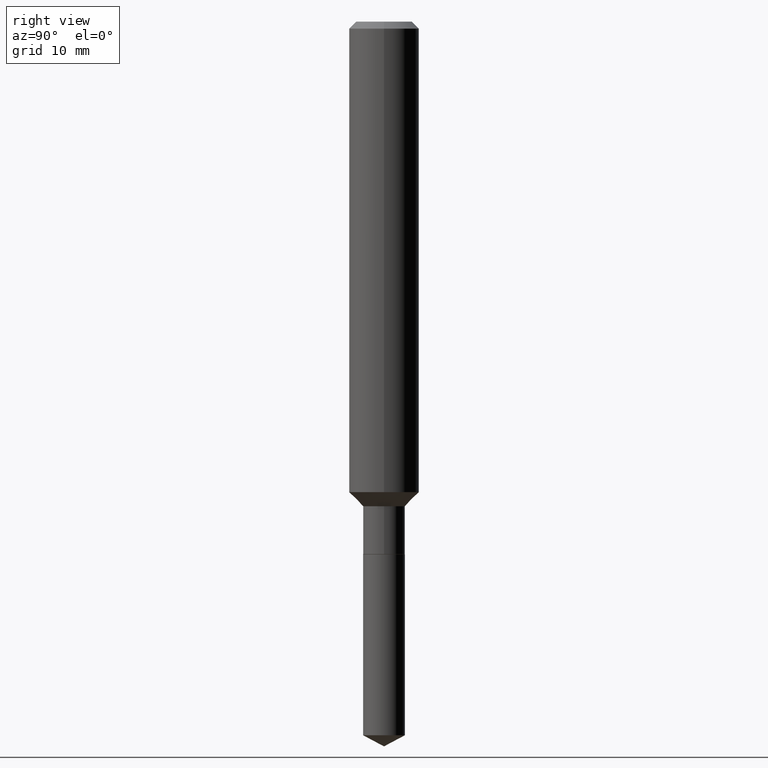
[diagram: clean part render]
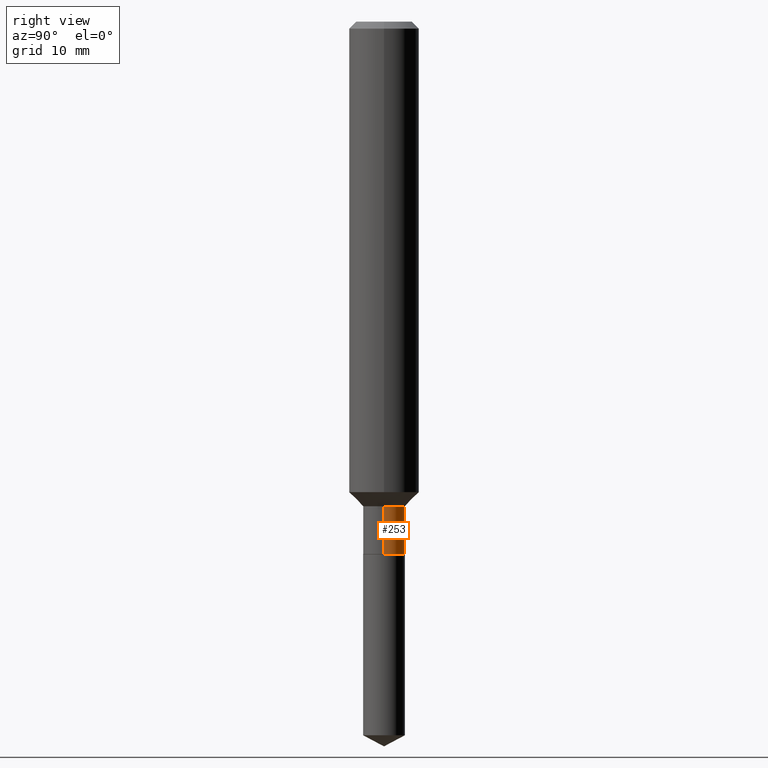
[diagram: same view with one face highlighted and labeled with its STEP entity id]
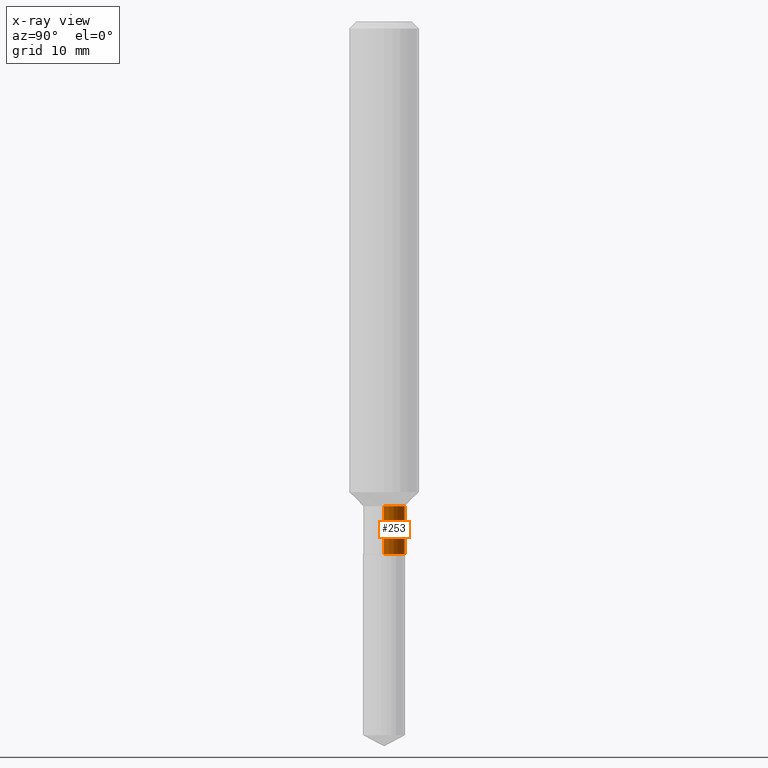
[diagram: x-ray of the same camera — body ghosted, the highlighted face saturated]
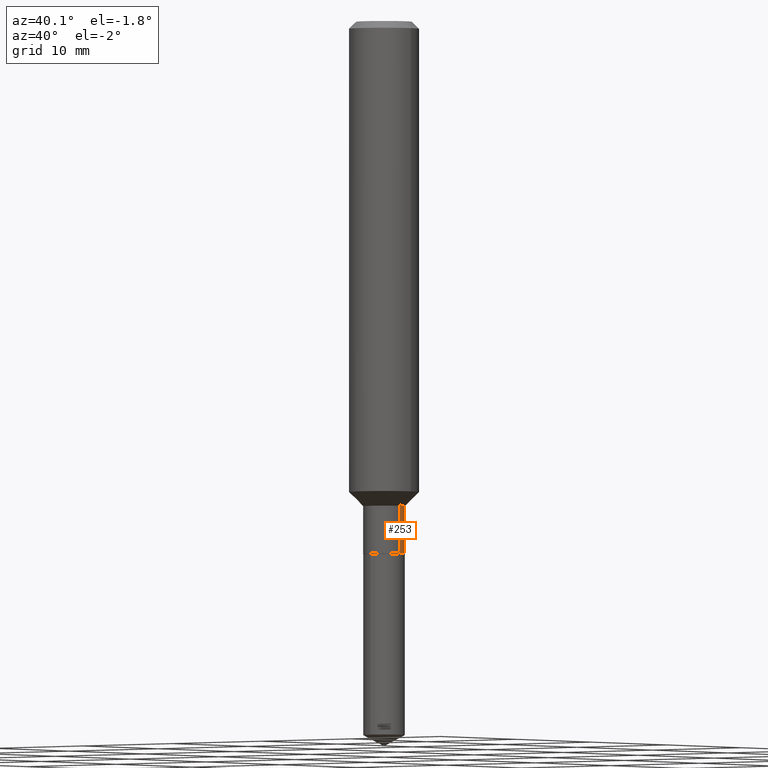
[diagram: same view with one face highlighted and labeled with its STEP entity id]
A machine part, right view. The second image highlights one B-rep face of the part: STEP entity #253.
The next image is the same camera in x-ray: the body ghosted, the highlighted face saturated — about 0% of this face is hidden behind the body in this view.
A second angle (auxiliary view) of the same face is appended — the face is thin or edge-on in the first view.
In plain terms, the highlighted cylindrical surface (edge-blend (fillet) strip) has radius 1.7856 mm, axis along (-0, 0, 1).
Its self-contained STEP definition (entity closure, byte-faithful):
#1 = DIRECTION ( 'NONE',  ( -2.445468806185136877E-29, 3.491481338843145188E-15, 1.000000000000000000 ) ) ;
#13 = ORIENTED_EDGE ( 'NONE', *, *, #116, .F. ) ;
#15 = VECTOR ( 'NONE', #249, 39.37007874015748143 ) ;
#24 = CARTESIAN_POINT ( 'NONE',  ( 0.07030000000000000138, -6.753223205590411040E-15, -1.793600000000000305 ) ) ;
#33 = EDGE_CURVE ( 'NONE', #250, #201, #358, .T. ) ;
#36 = ORIENTED_EDGE ( 'NONE', *, *, #33, .T. ) ;
#67 = AXIS2_PLACEMENT_3D ( 'NONE', #230, #385, #298 ) ;
#70 = CARTESIAN_POINT ( 'NONE',  ( 0.07030000000000000138, -4.909022762413445529E-16, 3.427952273384543137E-30 ) ) ;
#90 = FACE_OUTER_BOUND ( 'NONE', #244, .T. ) ;
#101 = EDGE_CURVE ( 'NONE', #201, #212, #308, .T. ) ;
#103 = ORIENTED_EDGE ( 'NONE', *, *, #480, .F. ) ;
#107 = VERTEX_POINT ( 'NONE', #189 ) ;
#116 = EDGE_CURVE ( 'NONE', #107, #212, #423, .T. ) ;
#141 = CARTESIAN_POINT ( 'NONE',  ( 4.386192850773661378E-29, -6.262320929349066882E-15, -1.793600000000000305 ) ) ;
#148 = AXIS2_PLACEMENT_3D ( 'NONE', #357, #156, #438 ) ;
#156 = DIRECTION ( 'NONE',  ( -2.445468806185136597E-29, 3.491481338843145583E-15, 1.000000000000000000 ) ) ;
#189 = CARTESIAN_POINT ( 'NONE',  ( 0.07029999999999998750, -6.190396413768896991E-15, -1.632400000000000295 ) ) ;
#201 = VERTEX_POINT ( 'NONE', #347 ) ;
#212 = VERTEX_POINT ( 'NONE', #304 ) ;
#215 = DIRECTION ( 'NONE',  ( -2.445468806185136597E-29, 3.491481338843145583E-15, 1.000000000000000000 ) ) ;
#230 = CARTESIAN_POINT ( 'NONE',  ( 3.991983279216617405E-29, -5.699494137527552043E-15, -1.632400000000000295 ) ) ;
#239 = ORIENTED_EDGE ( 'NONE', *, *, #101, .T. ) ;
#244 = EDGE_LOOP ( 'NONE', ( #36, #239, #13, #103 ) ) ;
#249 = DIRECTION ( 'NONE',  ( -2.445468806185136877E-29, 3.491481338843145188E-15, 1.000000000000000000 ) ) ;
#250 = VERTEX_POINT ( 'NONE', #24 ) ;
#253 = ADVANCED_FACE ( 'NONE', ( #90 ), #428, .T. ) ;
#296 = DIRECTION ( 'NONE',  ( 1.000000000000000000, -6.982962677686265133E-15, 0.000000000000000000 ) ) ;
#298 = DIRECTION ( 'NONE',  ( 1.000000000000000000, -6.982962677686266711E-15, 0.000000000000000000 ) ) ;
#304 = CARTESIAN_POINT ( 'NONE',  ( -0.07029999999999998750, -5.481395990198959614E-15, -1.632400000000000295 ) ) ;
#308 = LINE ( 'NONE', #421, #331 ) ;
#316 = AXIS2_PLACEMENT_3D ( 'NONE', #141, #215, #296 ) ;
#322 = LINE ( 'NONE', #70, #15 ) ;
#331 = VECTOR ( 'NONE', #1, 39.37007874015748143 ) ;
#347 = CARTESIAN_POINT ( 'NONE',  ( -0.07030000000000001525, -5.481395990198959614E-15, -1.793600000000000305 ) ) ;
#357 = CARTESIAN_POINT ( 'NONE',  ( 0.000000000000000000, 0.000000000000000000, 0.000000000000000000 ) ) ;
#358 = CIRCLE ( 'NONE', #316, 0.07030000000000000138 ) ;
#385 = DIRECTION ( 'NONE',  ( -2.445468806185136597E-29, 3.491481338843145583E-15, 1.000000000000000000 ) ) ;
#421 = CARTESIAN_POINT ( 'NONE',  ( -0.07030000000000000138, 4.995115432393504404E-16, -3.458011368449198869E-30 ) ) ;
#423 = CIRCLE ( 'NONE', #67, 0.07029999999999998750 ) ;
#428 = CYLINDRICAL_SURFACE ( 'NONE', #148, 0.07030000000000000138 ) ;
#438 = DIRECTION ( 'NONE',  ( 1.000000000000000000, -6.982962677686266711E-15, 4.876176775795936353E-29 ) ) ;
#480 = EDGE_CURVE ( 'NONE', #250, #107, #322, .T. ) ;